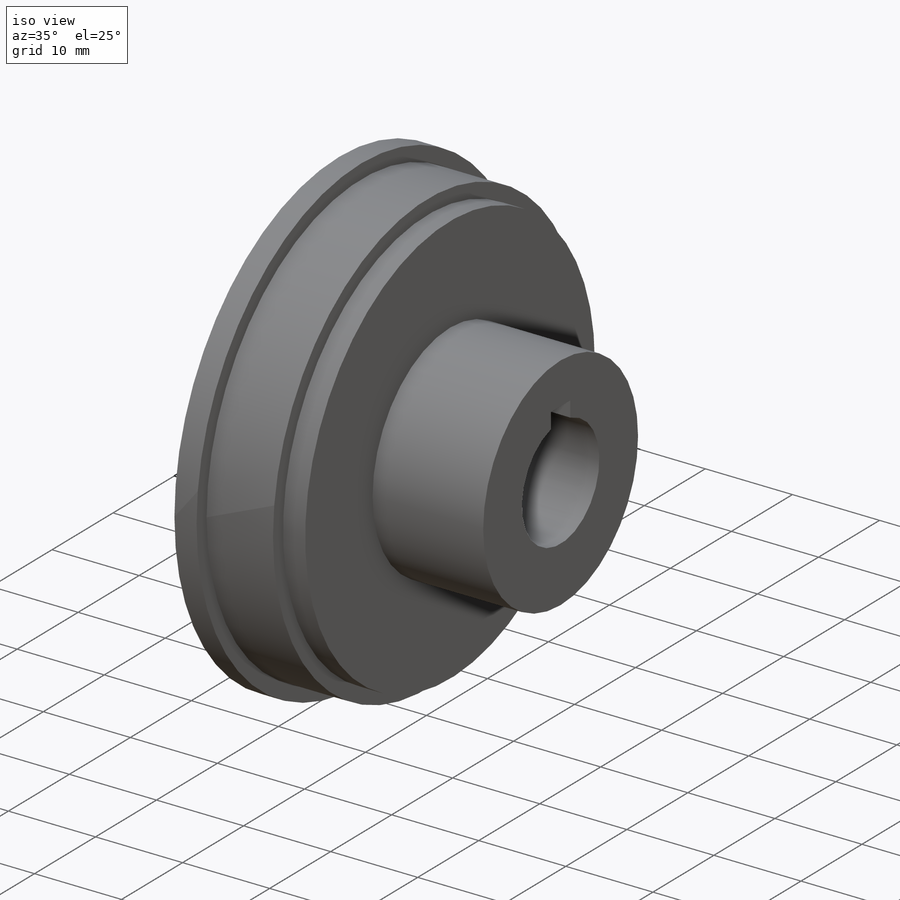
[diagram: iso view]
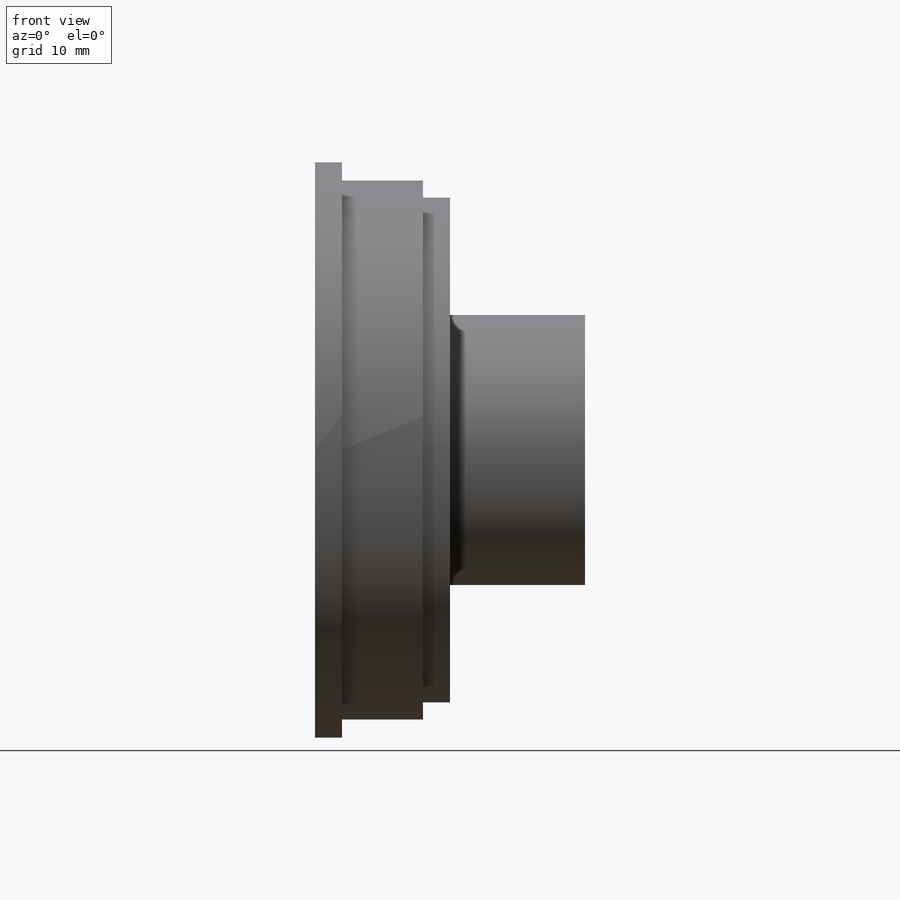
[diagram: front view]
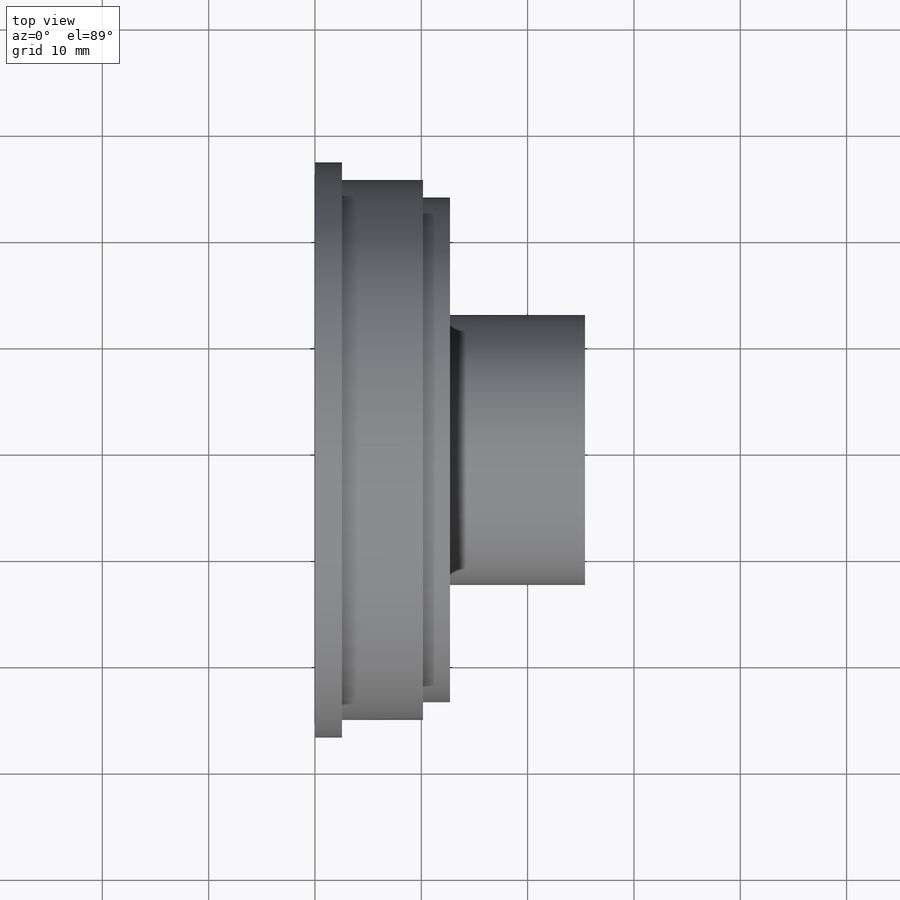
[diagram: top view]
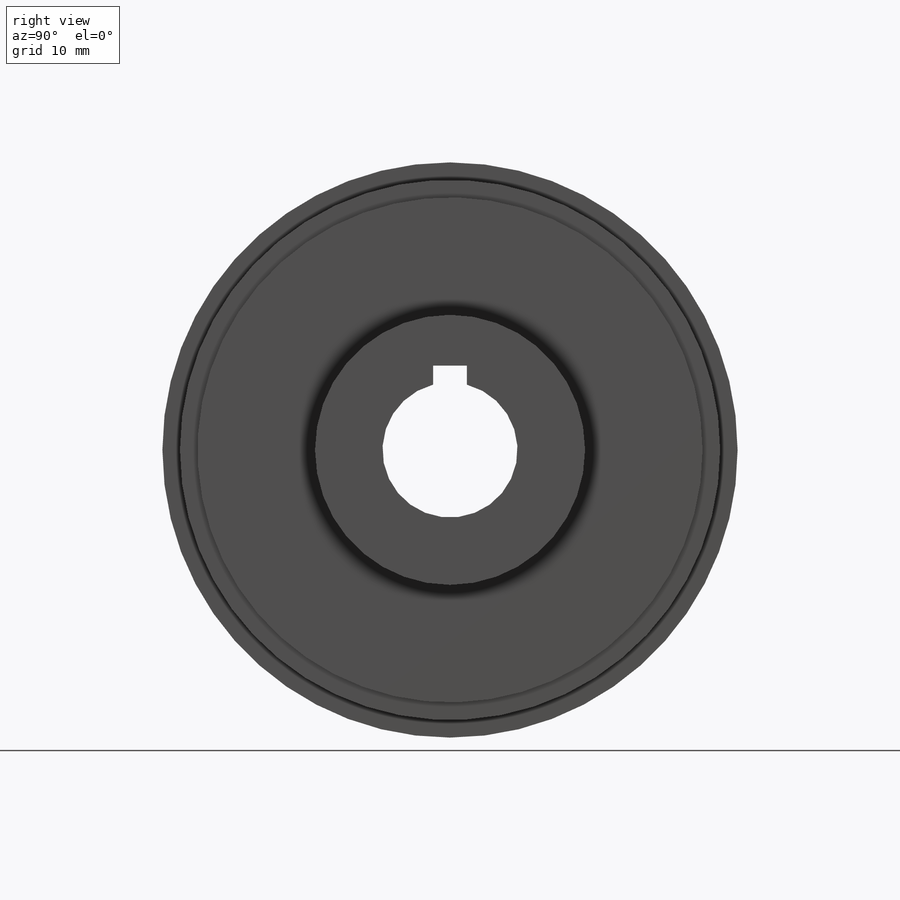
[diagram: right view]
SOLIDWORKS PART (.sldprt)
format: sldprt  version: not decoded by parser v0  size: 212,992 bytes
history: native  units: mm
features: sketch x5, extrude x3, cut_extrude x2, material x1 (+13 scaffold rows collapsed)
feature tree (24):
  scaffold x13  (default folders/planes/origin — collapsed)
  material  "Plain Carbon Steel"
  sketch  "Sketch1"  dims[c1.D1=~5.620761mm c1.D4=25.4mm c2.D1=6.35mm c2.D2=1.5875mm c2.D3=3.175mm]
  extrude  "Boss-Extrude1"  Depth=25.4mm
  sketch  "Sketch2"  dims[D1=38.1mm]
  extrude  "Boss-Extrude2"  Depth=12.7mm
  sketch  "Sketch3"  dims[D1=~9.549761mm]
  cut_extrude  "Cut-Extrude1"  [1 undecoded]
  sketch  "Sketch5"  dims[D1=39.751mm]
  extrude  "Boss-Extrude3"  Depth=2.54mm
  sketch  "Sketch6"  dims[D1=38.1mm]
  cut_extrude  "Cut-Extrude3"  Depth=2.54mm
decode coverage: 9 of 10 modeling features carry decoded parameters
note: ~ marks probable driven/reference dimensions
note: 1 parameter value undecoded
note: suppression state not decoded; provenance and decode notes live in map.json
